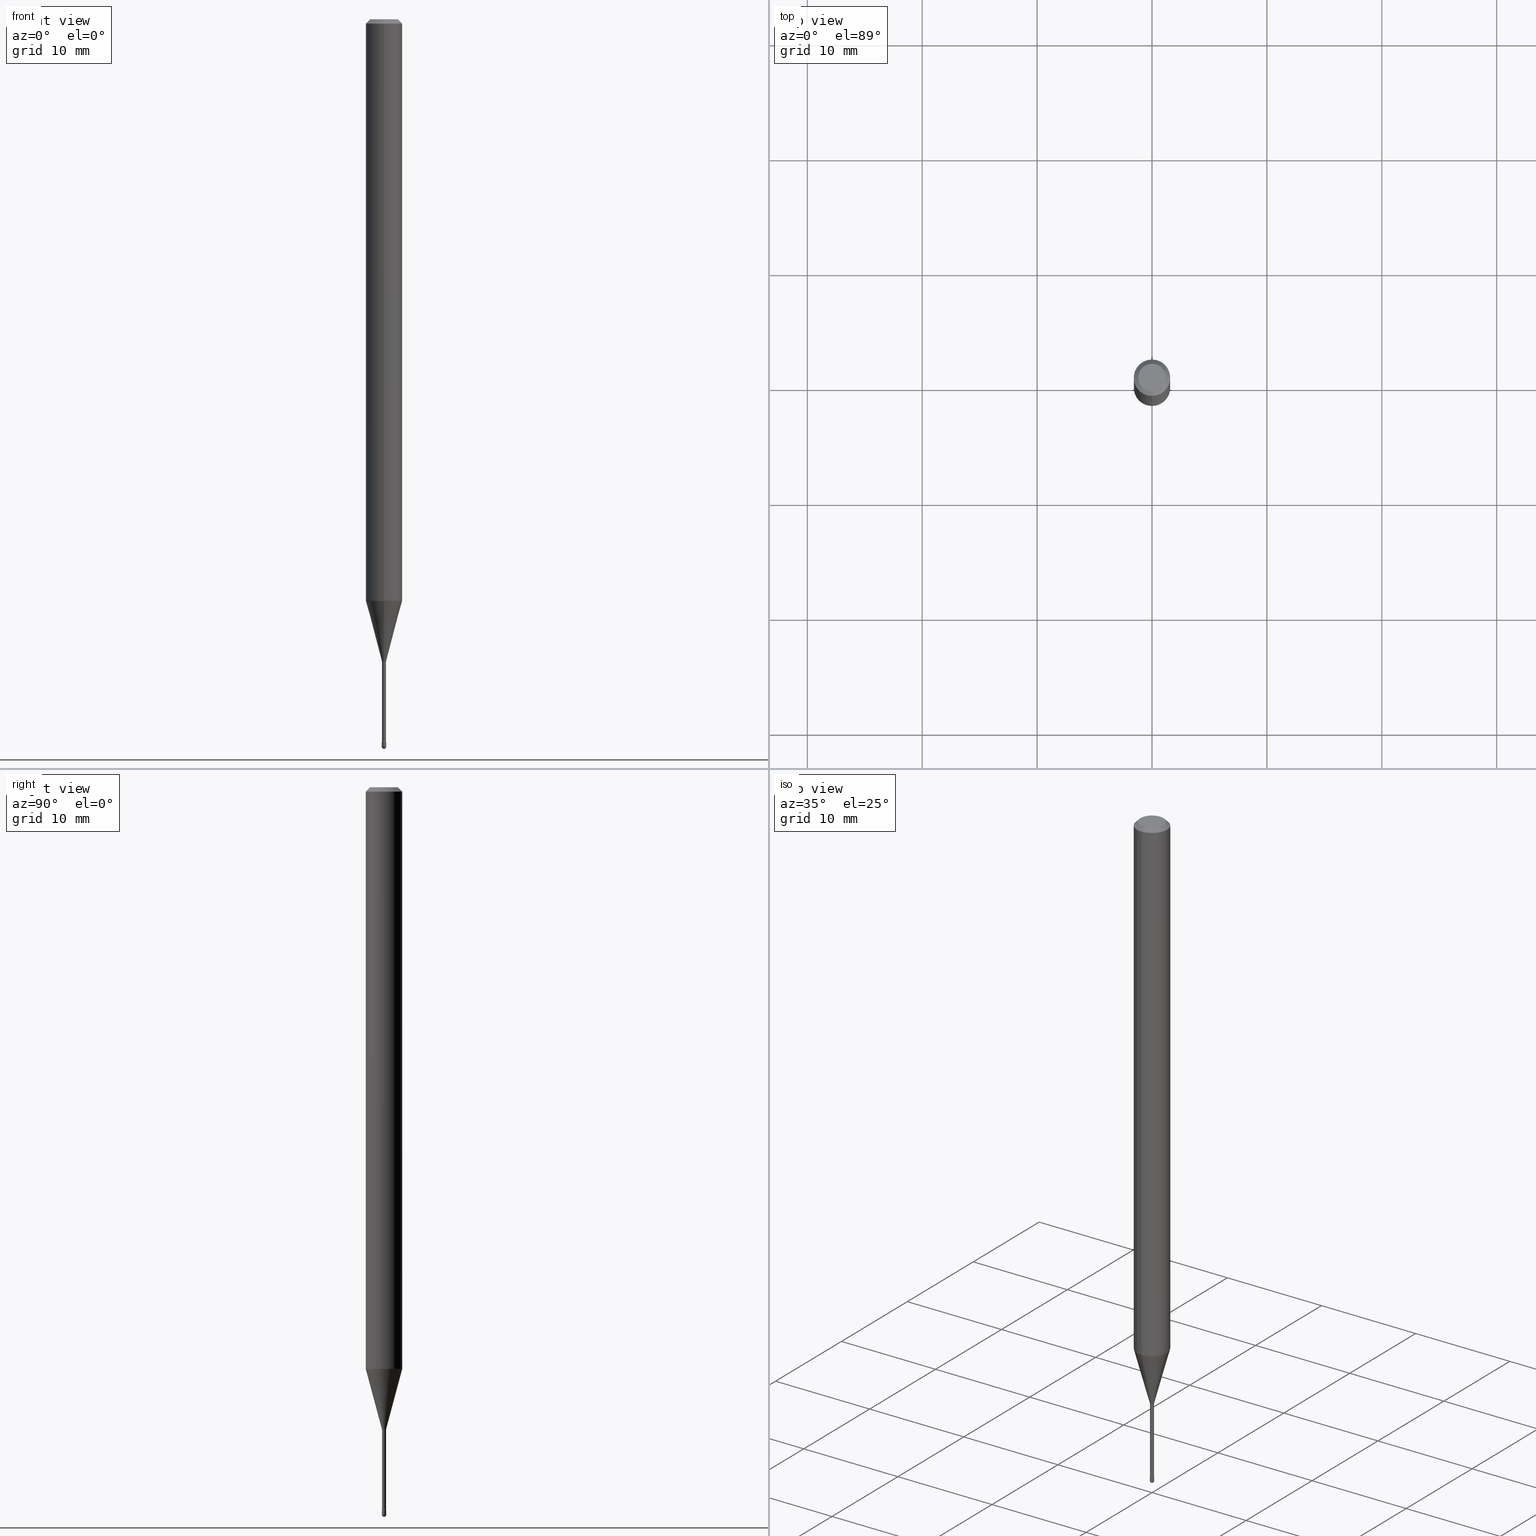
[diagram: canonical four-view strip — front | top / right | iso, engineering-drawing reading convention]
A machine part, canonical four-view strip (front | top / right | iso — engineering-drawing reading convention). The complete STEP part file that produces these views, byte-faithful:
ISO-10303-21;
HEADER;
FILE_DESCRIPTION (( 'STEP AP203' ),
    '1' );
FILE_NAME ('03941.STEP',
    '2024-04-09T21:19:28',
    ( '' ),
    ( '' ),
    'SwSTEP 2.0',
    'SolidWorks 2023',
    '' );
FILE_SCHEMA (( 'CONFIG_CONTROL_DESIGN' ));
ENDSEC;

DATA;
#1 = LINE ( 'NONE', #135, #249 ) ;
#2 = VERTEX_POINT ( 'NONE', #196 ) ;
#3 = EDGE_CURVE ( 'NONE', #2, #80, #364, .T. ) ;
#4 = DIRECTION ( 'NONE',  ( -2.438088387897960049E-29, 3.491481338843145188E-15, 1.000000000000000000 ) ) ;
#5 = ORIENTED_EDGE ( 'NONE', *, *, #25, .T. ) ;
#6 = DIRECTION ( 'NONE',  ( -2.445468806185136597E-29, 3.491481338843145583E-15, 1.000000000000000000 ) ) ;
#7 = ORIENTED_EDGE ( 'NONE', *, *, #260, .T. ) ;
#8 = AXIS2_PLACEMENT_3D ( 'NONE', #153, #381, #505 ) ;
#9 = CIRCLE ( 'NONE', #72, 0.04749999999999999362 ) ;
#10 = AXIS2_PLACEMENT_3D ( 'NONE', #456, #19, #449 ) ;
#11 = APPLICATION_PROTOCOL_DEFINITION ( 'international standard', 'config_control_design', 1994, #553 ) ;
#12 = DIRECTION ( 'NONE',  ( -2.445459796286561795E-29, 3.491494241530716239E-15, 1.000000000000000000 ) ) ;
#13 = ORIENTED_EDGE ( 'NONE', *, *, #310, .T. ) ;
#14 = CALENDAR_DATE ( 2024, 9, 4 ) ;
#15 = DIRECTION ( 'NONE',  ( -2.445459796286561515E-29, 3.491494241530715845E-15, 1.000000000000000000 ) ) ;
#16 = VERTEX_POINT ( 'NONE', #143 ) ;
#17 = ADVANCED_FACE ( 'NONE', ( #245 ), #288, .T. ) ;
#18 = COORDINATED_UNIVERSAL_TIME_OFFSET ( 5, 0, .BEHIND. ) ;
#19 = DIRECTION ( 'NONE',  ( -2.445468806185136597E-29, 3.491481338843145583E-15, 1.000000000000000000 ) ) ;
#20 = CARTESIAN_POINT ( 'NONE',  ( -0.007499999999999998855, 5.329070518200750581E-17, -3.689201317691178390E-31 ) ) ;
#21 = PRODUCT_RELATED_PRODUCT_CATEGORY ( 'detail', '', ( #411 ) ) ;
#22 = VECTOR ( 'NONE', #15, 39.37007874015748143 ) ;
#23 = CARTESIAN_POINT ( 'NONE',  ( 5.384860654748895550E-29, -7.688153879032997927E-15, -2.201974787463810923 ) ) ;
#24 = DIRECTION ( 'NONE',  ( 1.000000000000000000, -6.982962677686265922E-15, 4.883557194083112340E-29 ) ) ;
#25 = EDGE_CURVE ( 'NONE', #173, #523, #225, .T. ) ;
#26 = FACE_OUTER_BOUND ( 'NONE', #489, .T. ) ;
#27 = ADVANCED_FACE ( 'NONE', ( #26 ), #332, .F. ) ;
#28 = CARTESIAN_POINT ( 'NONE',  ( 6.095330999416453954E-29, -8.702517237066541600E-15, -2.492500000000000160 ) ) ;
#29 = AXIS2_PLACEMENT_3D ( 'NONE', #503, #546, #110 ) ;
#30 = APPROVAL_PERSON_ORGANIZATION ( #445, #327, #414 ) ;
#31 = DIRECTION ( 'NONE',  ( -2.445468806185136877E-29, 3.491481338843145188E-15, 1.000000000000000000 ) ) ;
#32 = EDGE_CURVE ( 'NONE', #187, #106, #409, .T. ) ;
#33 = DIRECTION ( 'NONE',  ( -6.982962677686265922E-15, -1.000000000000000000, 3.491494241530716239E-15 ) ) ;
#34 = CC_DESIGN_DATE_AND_TIME_ASSIGNMENT ( #109, #149, ( #134 ) ) ;
#35 = VERTEX_POINT ( 'NONE', #419 ) ;
#36 = DIRECTION ( 'NONE',  ( -2.445459796286561795E-29, 3.491494241530716239E-15, 1.000000000000000000 ) ) ;
#37 = VERTEX_POINT ( 'NONE', #198 ) ;
#38 = FACE_OUTER_BOUND ( 'NONE', #439, .T. ) ;
#39 = ORIENTED_EDGE ( 'NONE', *, *, #526, .F. ) ;
#40 = ADVANCED_FACE ( 'NONE', ( #369 ), #376, .T. ) ;
#41 = FACE_OUTER_BOUND ( 'NONE', #394, .T. ) ;
#42 = ORIENTED_EDGE ( 'NONE', *, *, #469, .T. ) ;
#43 = CARTESIAN_POINT ( 'NONE',  ( 6.048508650603792991E-29, -8.635667332170297409E-15, -2.473353426265656907 ) ) ;
#44 = CARTESIAN_POINT ( 'NONE',  ( 5.329070518206814949E-17, 0.007499999999991363402, -2.476999999999999869 ) ) ;
#45 = CIRCLE ( 'NONE', #501, 0.007561112605663979948 ) ;
#46 = EDGE_LOOP ( 'NONE', ( #228, #485, #85, #129 ) ) ;
#47 = CARTESIAN_POINT ( 'NONE',  ( 6.057403915401813978E-29, -8.648431236271582812E-15, -2.476999999999999869 ) ) ;
#48 = ORIENTED_EDGE ( 'NONE', *, *, #112, .F. ) ;
#49 = SPHERICAL_SURFACE ( 'NONE', #159, 0.007499999999999925129 ) ;
#50 = ORIENTED_EDGE ( 'NONE', *, *, #322, .F. ) ;
#51 = CARTESIAN_POINT ( 'NONE',  ( 6.057403915401813978E-29, -8.648431236271582812E-15, -2.476999999999999869 ) ) ;
#52 = ORIENTED_EDGE ( 'NONE', *, *, #137, .T. ) ;
#53 = CIRCLE ( 'NONE', #95, 0.01500000000000002373 ) ;
#54 = CC_DESIGN_APPROVAL ( #388, ( #424 ) ) ;
#55 = DIRECTION ( 'NONE',  ( 1.839019923739597160E-15, 0.2588190451025245142, 0.9659258262890670910 ) ) ;
#56 = EDGE_LOOP ( 'NONE', ( #74, #140, #77, #398 ) ) ;
#57 = PERSON_AND_ORGANIZATION_ROLE ( 'creator' ) ;
#58 = CARTESIAN_POINT ( 'NONE',  ( -1.539743270429283217E-16, -0.02205000000000768845, -2.201974787463810923 ) ) ;
#59 = ADVANCED_FACE ( 'NONE', ( #247 ), #548, .T. ) ;
#60 = DIRECTION ( 'NONE',  ( -2.445468806185136597E-29, 3.491481338843145583E-15, 1.000000000000000000 ) ) ;
#61 = CARTESIAN_POINT ( 'NONE',  ( 6.095330999416453954E-29, -8.702517237066541600E-15, -2.492500000000000160 ) ) ;
#62 = DIRECTION ( 'NONE',  ( -2.445468806185136597E-29, 3.491481338843145583E-15, 1.000000000000000000 ) ) ;
#63 = ADVANCED_FACE ( 'NONE', ( #543 ), #240, .T. ) ;
#64 = AXIS2_PLACEMENT_3D ( 'NONE', #207, #255, #343 ) ;
#65 = LOCAL_TIME ( 17, 19, 28.00000000000000000, #448 ) ;
#66 = PERSON_AND_ORGANIZATION ( #358, #560 ) ;
#67 = CARTESIAN_POINT ( 'NONE',  ( 3.668189694429862924E-31, -5.237241362296103029E-17, -0.01500000000000008271 ) ) ;
#68 = ORIENTED_EDGE ( 'NONE', *, *, #291, .T. ) ;
#69 = DIRECTION ( 'NONE',  ( 7.105427357601001859E-15, 1.000000000000000000, 0.000000000000000000 ) ) ;
#70 = EDGE_CURVE ( 'NONE', #211, #285, #167, .T. ) ;
#71 = CARTESIAN_POINT ( 'NONE',  ( 5.384840815179397480E-29, -7.688182290425718851E-15, -2.201974787463810923 ) ) ;
#72 = AXIS2_PLACEMENT_3D ( 'NONE', #172, #223, #217 ) ;
#73 = DIRECTION ( 'NONE',  ( -2.445459796286561795E-29, 3.491494241530716239E-15, 1.000000000000000000 ) ) ;
#74 = ORIENTED_EDGE ( 'NONE', *, *, #70, .F. ) ;
#75 = ORIENTED_EDGE ( 'NONE', *, *, #483, .F. ) ;
#76 = DIRECTION ( 'NONE',  ( -2.445468806185136597E-29, 3.491481338843145583E-15, 1.000000000000000000 ) ) ;
#77 = ORIENTED_EDGE ( 'NONE', *, *, #199, .F. ) ;
#78 = CONICAL_SURFACE ( 'NONE', #313, 0.06250000000000000000, 0.7853981633974483900 ) ;
#79 = DIRECTION ( 'NONE',  ( 7.105427357601001859E-15, 1.000000000000000000, 0.000000000000000000 ) ) ;
#80 = VERTEX_POINT ( 'NONE', #334 ) ;
#81 = CARTESIAN_POINT ( 'NONE',  ( 6.095330999416453954E-29, -8.702517237066541600E-15, -2.492500000000000160 ) ) ;
#82 = ORIENTED_EDGE ( 'NONE', *, *, #291, .F. ) ;
#83 = DIMENSIONAL_EXPONENTS ( 1.000000000000000000, 0.000000000000000000, 0.000000000000000000, 0.000000000000000000, 0.000000000000000000, 0.000000000000000000, 0.000000000000000000 ) ;
#84 = DIRECTION ( 'NONE',  ( -2.445459796286561515E-29, 3.491494241530715845E-15, 1.000000000000000000 ) ) ;
#85 = ORIENTED_EDGE ( 'NONE', *, *, #3, .F. ) ;
#86 = CARTESIAN_POINT ( 'NONE',  ( -4.364351673553429572E-16, -0.06250000000000695277, -1.993057782720305759 ) ) ;
#87 = AXIS2_PLACEMENT_3D ( 'NONE', #434, #268, #522 ) ;
#88 = ORIENTED_EDGE ( 'NONE', *, *, #535, .F. ) ;
#89 = LINE ( 'NONE', #277, #413 ) ;
#90 = ORIENTED_EDGE ( 'NONE', *, *, #70, .T. ) ;
#91 = CARTESIAN_POINT ( 'NONE',  ( -5.279896712708096815E-17, -0.007561112605671654364, -2.198092501787273001 ) ) ;
#92 = ORIENTED_EDGE ( 'NONE', *, *, #137, .F. ) ;
#93 = CARTESIAN_POINT ( 'NONE',  ( -3.773273898774340269E-16, -0.04749999999999999362, 8.309955727882320030E-17 ) ) ;
#94 = EDGE_LOOP ( 'NONE', ( #383, #520, #183, #123 ) ) ;
#95 = AXIS2_PLACEMENT_3D ( 'NONE', #459, #294, #69 ) ;
#96 = EDGE_CURVE ( 'NONE', #106, #450, #144, .T. ) ;
#97 = PERSON_AND_ORGANIZATION ( #358, #560 ) ;
#98 = DIRECTION ( 'NONE',  ( -1.000000000000000000, 7.105427357601001070E-15, -4.926315508542082329E-29 ) ) ;
#99 = ORIENTED_EDGE ( 'NONE', *, *, #429, .T. ) ;
#100 = PRODUCT_DEFINITION_SHAPE ( 'NONE', 'NONE',  #424 ) ;
#101 = DIRECTION ( 'NONE',  ( -6.982962677686265922E-15, -1.000000000000000000, 4.370956789862821150E-15 ) ) ;
#102 = EDGE_CURVE ( 'NONE', #428, #344, #53, .T. ) ;
#103 = CARTESIAN_POINT ( 'NONE',  ( 0.000000000000000000, 0.000000000000000000, 0.000000000000000000 ) ) ;
#104 = APPROVAL_STATUS ( 'not_yet_approved' ) ;
#105 = DIRECTION ( 'NONE',  ( -6.982962677686265922E-15, -1.000000000000000000, 0.000000000000000000 ) ) ;
#106 = VERTEX_POINT ( 'NONE', #111 ) ;
#107 = AXIS2_PLACEMENT_3D ( 'NONE', #474, #559, #252 ) ;
#108 = VECTOR ( 'NONE', #330, 39.37007874015748143 ) ;
#109 = DATE_AND_TIME ( #371, #457 ) ;
#110 = DIRECTION ( 'NONE',  ( 1.000000000000000000, -6.982962677686268288E-15, 0.000000000000000000 ) ) ;
#111 = CARTESIAN_POINT ( 'NONE',  ( -0.007500000000000001457, -8.622167551508499156E-15, -2.476999999999999869 ) ) ;
#112 = EDGE_CURVE ( 'NONE', #80, #2, #336, .T. ) ;
#113 = CARTESIAN_POINT ( 'NONE',  ( -5.329070518194628897E-17, -0.007500000000008663799, -2.492500000000000160 ) ) ;
#114 = TOROIDAL_SURFACE ( 'NONE', #342, 0.02205000000000003485, 0.01500000000000002547 ) ;
#115 = CIRCLE ( 'NONE', #10, 0.007499999999999999722 ) ;
#116 = DIRECTION ( 'NONE',  ( 6.982962677686265922E-15, 1.000000000000000000, -3.483106191921935554E-15 ) ) ;
#117 = FACE_OUTER_BOUND ( 'NONE', #126, .T. ) ;
#118 = EDGE_CURVE ( 'NONE', #328, #37, #462, .T. ) ;
#119 = CARTESIAN_POINT ( 'NONE',  ( 1.566746732351558825E-16, 0.02204999999999231186, -2.201974787463810923 ) ) ;
#120 = VECTOR ( 'NONE', #393, 39.37007874015748143 ) ;
#121 = CC_DESIGN_APPROVAL ( #327, ( #464 ) ) ;
#122 = DIRECTION ( 'NONE',  ( 6.982962677686265922E-15, 1.000000000000000000, 0.000000000000000000 ) ) ;
#123 = ORIENTED_EDGE ( 'NONE', *, *, #555, .F. ) ;
#124 = EDGE_CURVE ( 'NONE', #328, #360, #430, .T. ) ;
#125 = DIRECTION ( 'NONE',  ( -1.000000000000000000, 6.982962677686265922E-15, -4.883557194083112901E-29 ) ) ;
#126 = EDGE_LOOP ( 'NONE', ( #259, #321, #350, #256 ) ) ;
#127 = CC_DESIGN_PERSON_AND_ORGANIZATION_ASSIGNMENT ( #455, #185, ( #464 ) ) ;
#128 = CARTESIAN_POINT ( 'NONE',  ( 6.048508650603792991E-29, -8.635667332170297409E-15, -2.473353426265656907 ) ) ;
#129 = ORIENTED_EDGE ( 'NONE', *, *, #374, .F. ) ;
#130 = CLOSED_SHELL ( 'NONE', ( #17, #386, #331, #154, #59 ) ) ;
#131 = CARTESIAN_POINT ( 'NONE',  ( 5.009326287108708664E-17, 0.007050000000000005047, 4.534583644884544439E-16 ) ) ;
#132 = CIRCLE ( 'NONE', #377, 0.007499999999999999722 ) ;
#133 = ORIENTED_EDGE ( 'NONE', *, *, #506, .F. ) ;
#134 = SECURITY_CLASSIFICATION ( '', '', #502 ) ;
#135 = CARTESIAN_POINT ( 'NONE',  ( -4.287811248607203282E-16, -0.06250000000000005551, -0.01499999999999986587 ) ) ;
#136 = EDGE_LOOP ( 'NONE', ( #476, #162, #5, #208, #221 ) ) ;
#137 = EDGE_CURVE ( 'NONE', #428, #16, #365, .T. ) ;
#138 = APPROVAL_DATE_TIME ( #333, #327 ) ;
#139 = CARTESIAN_POINT ( 'NONE',  ( 5.372493636224038015E-17, 0.007561112605656304664, -2.198092501787273001 ) ) ;
#140 = ORIENTED_EDGE ( 'NONE', *, *, #521, .T. ) ;
#141 = CC_DESIGN_PERSON_AND_ORGANIZATION_ASSIGNMENT ( #66, #361, ( #134 ) ) ;
#142 = DIRECTION ( 'NONE',  ( -1.000000000000000000, 6.982962677686265922E-15, -4.883557194083112340E-29 ) ) ;
#143 = CARTESIAN_POINT ( 'NONE',  ( -4.922988687762774144E-17, -0.007050000000008643103, -2.473353426265656907 ) ) ;
#144 = CIRCLE ( 'NONE', #29, 0.007499999999999999722 ) ;
#145 = EDGE_CURVE ( 'NONE', #523, #450, #155, .T. ) ;
#146 = COORDINATED_UNIVERSAL_TIME_OFFSET ( 5, 0, .BEHIND. ) ;
#147 = DIRECTION ( 'NONE',  ( -6.982962677686265133E-15, -1.000000000000000000, 0.000000000000000000 ) ) ;
#148 = DIRECTION ( 'NONE',  ( -2.445468806185136597E-29, 3.491481338843145583E-15, 1.000000000000000000 ) ) ;
#149 = DATE_TIME_ROLE ( 'classification_date' ) ;
#150 = CARTESIAN_POINT ( 'NONE',  ( 4.364351673553919652E-16, 0.06249999999999995143, -0.01500000000000030129 ) ) ;
#151 = ORIENTED_EDGE ( 'NONE', *, *, #307, .F. ) ;
#152 = DIRECTION ( 'NONE',  ( -2.445459796286561795E-29, 3.491494241530716239E-15, 1.000000000000000000 ) ) ;
#153 = CARTESIAN_POINT ( 'NONE',  ( -1.169113584055446105E-44, 1.669184350826100908E-30, 4.780733988912460139E-16 ) ) ;
#154 = ADVANCED_FACE ( 'NONE', ( #261 ), #507, .T. ) ;
#155 = LINE ( 'NONE', #258, #304 ) ;
#156 = ADVANCED_FACE ( 'NONE', ( #41 ), #78, .T. ) ;
#157 = CARTESIAN_POINT ( 'NONE',  ( 6.095330999416453954E-29, -8.702517237066541600E-15, -2.492500000000000160 ) ) ;
#158 = AXIS2_PLACEMENT_3D ( 'NONE', #493, #236, #551 ) ;
#159 = AXIS2_PLACEMENT_3D ( 'NONE', #182, #125, #397 ) ;
#160 = CIRCLE ( 'NONE', #216, 0.06250000000000000000 ) ;
#161 = CARTESIAN_POINT ( 'NONE',  ( -0.007499999999999998855, -8.622167551508499156E-15, -2.492500000000000160 ) ) ;
#162 = ORIENTED_EDGE ( 'NONE', *, *, #199, .T. ) ;
#163 = SHAPE_DEFINITION_REPRESENTATION ( #100, #219 ) ;
#164 = FACE_OUTER_BOUND ( 'NONE', #46, .T. ) ;
#165 = DIRECTION ( 'NONE',  ( -1.000000000000000000, 6.982962677686265922E-15, -4.883557194083112901E-29 ) ) ;
#166 = ORIENTED_EDGE ( 'NONE', *, *, #335, .F. ) ;
#167 = CIRCLE ( 'NONE', #209, 0.007499999999999925129 ) ;
#168 = AXIS2_PLACEMENT_3D ( 'NONE', #204, #326, #466 ) ;
#169 = TOROIDAL_SURFACE ( 'NONE', #530, 0.02205000000000000016, 0.01500000000000002547 ) ;
#170 = DIRECTION ( 'NONE',  ( 1.000000000000000000, -6.982962677686265922E-15, 4.876176775795935793E-29 ) ) ;
#171 = EDGE_CURVE ( 'NONE', #523, #285, #354, .T. ) ;
#172 = CARTESIAN_POINT ( 'NONE',  ( 2.023487340324871888E-45, -2.889148145544406891E-31, -8.274641919388579936E-17 ) ) ;
#173 = VERTEX_POINT ( 'NONE', #113 ) ;
#174 = DIRECTION ( 'NONE',  ( -6.982962677686265922E-15, -1.000000000000000000, 0.000000000000000000 ) ) ;
#175 = EDGE_LOOP ( 'NONE', ( #7, #13, #478, #306 ) ) ;
#176 = UNCERTAINTY_MEASURE_WITH_UNIT (LENGTH_MEASURE( 1.000000000000000082E-05 ), #197, 'distance_accuracy_value', 'NONE');
#177 = ADVANCED_FACE ( 'NONE', ( #117 ), #299, .T. ) ;
#178 = FACE_OUTER_BOUND ( 'NONE', #175, .T. ) ;
#179 = AXIS2_PLACEMENT_3D ( 'NONE', #205, #382, #556 ) ;
#180 = ORIENTED_EDGE ( 'NONE', *, *, #171, .F. ) ;
#181 = DATE_AND_TIME ( #541, #203 ) ;
#182 = CARTESIAN_POINT ( 'NONE',  ( 6.095330999416453954E-29, -8.702517237066541600E-15, -2.492500000000000160 ) ) ;
#183 = ORIENTED_EDGE ( 'NONE', *, *, #124, .T. ) ;
#184 = DESIGN_CONTEXT ( 'detailed design', #508, 'design' ) ;
#185 = PERSON_AND_ORGANIZATION_ROLE ( 'design_supplier' ) ;
#186 = LINE ( 'NONE', #496, #22 ) ;
#187 = VERTEX_POINT ( 'NONE', #161 ) ;
#188 = ADVANCED_FACE ( 'NONE', ( #297 ), #338, .F. ) ;
#189 = PERSON_AND_ORGANIZATION ( #358, #560 ) ;
#190 = DIRECTION ( 'NONE',  ( -6.982962677686266711E-15, -1.000000000000000000, 0.000000000000000000 ) ) ;
#191 = CARTESIAN_POINT ( 'NONE',  ( 0.000000000000000000, 0.000000000000000000, 0.000000000000000000 ) ) ;
#192 = TOROIDAL_SURFACE ( 'NONE', #303, 0.02205000000000000016, 0.01500000000000002547 ) ;
#193 = CIRCLE ( 'NONE', #267, 0.007499999999999925129 ) ;
#194 = LENGTH_MEASURE_WITH_UNIT ( LENGTH_MEASURE( 0.02539999999999999897 ), #293 );
#195 = DIRECTION ( 'NONE',  ( -6.982962677686266711E-15, -1.000000000000000000, 0.000000000000000000 ) ) ;
#196 = CARTESIAN_POINT ( 'NONE',  ( -4.922988687763432966E-17, -0.007050000000007689872, -2.201974787463810923 ) ) ;
#197 =( CONVERSION_BASED_UNIT ( 'INCH', #194 ) LENGTH_UNIT ( ) NAMED_UNIT ( #83 ) );
#198 = CARTESIAN_POINT ( 'NONE',  ( 4.440892098501111311E-16, 0.06249999999999304029, -1.993057782720306426 ) ) ;
#199 = EDGE_CURVE ( 'NONE', #187, #173, #298, .T. ) ;
#200 = ORIENTED_EDGE ( 'NONE', *, *, #102, .T. ) ;
#201 = CLOSED_SHELL ( 'NONE', ( #280, #232, #401, #156, #177, #410, #467, #63, #351, #27, #188, #222, #40, #509 ) ) ;
#202 = AXIS2_PLACEMENT_3D ( 'NONE', #352, #6, #317 ) ;
#203 = LOCAL_TIME ( 17, 19, 28.00000000000000000, #146 ) ;
#204 = CARTESIAN_POINT ( 'NONE',  ( 4.873942679318546206E-29, -6.958749771405926605E-15, -1.993057782720306204 ) ) ;
#205 = CARTESIAN_POINT ( 'NONE',  ( 2.023487340324871888E-45, -2.889148145544406891E-31, -8.274641919388579936E-17 ) ) ;
#206 = ORIENTED_EDGE ( 'NONE', *, *, #112, .T. ) ;
#207 = CARTESIAN_POINT ( 'NONE',  ( 5.237222008270756882E-17, 0.007499999999991352126, -2.476999999999999869 ) ) ;
#208 = ORIENTED_EDGE ( 'NONE', *, *, #145, .T. ) ;
#209 = AXIS2_PLACEMENT_3D ( 'NONE', #28, #24, #373 ) ;
#210 = CC_DESIGN_APPROVAL ( #494, ( #134 ) ) ;
#211 = VERTEX_POINT ( 'NONE', #432 ) ;
#212 = DIRECTION ( 'NONE',  ( -6.982962677686265922E-15, -1.000000000000000000, 3.491494241530716239E-15 ) ) ;
#213 = ORIENTED_EDGE ( 'NONE', *, *, #335, .T. ) ;
#214 = CARTESIAN_POINT ( 'NONE',  ( 5.375346841639724006E-29, -7.674627312342109412E-15, -2.198092501787273001 ) ) ;
#215 = VECTOR ( 'NONE', #55, 39.37007874015748854 ) ;
#216 = AXIS2_PLACEMENT_3D ( 'NONE', #542, #244, #101 ) ;
#217 = DIRECTION ( 'NONE',  ( -6.982962677686266711E-15, -1.000000000000000000, 3.491494241530716239E-15 ) ) ;
#218 = ORIENTED_EDGE ( 'NONE', *, *, #3, .T. ) ;
#219 = ADVANCED_BREP_SHAPE_REPRESENTATION ( '03941', ( #254, #270, #380 ), #242 ) ;
#220 = DIRECTION ( 'NONE',  ( -2.445459796286561795E-29, 3.491494241530716239E-15, 1.000000000000000000 ) ) ;
#221 = ORIENTED_EDGE ( 'NONE', *, *, #96, .F. ) ;
#222 = ADVANCED_FACE ( 'NONE', ( #38 ), #114, .F. ) ;
#223 = DIRECTION ( 'NONE',  ( -2.445459796286561795E-29, 3.491494241530716239E-15, 1.000000000000000000 ) ) ;
#224 = ORIENTED_EDGE ( 'NONE', *, *, #295, .T. ) ;
#225 = CIRCLE ( 'NONE', #275, 0.007499999999999998855 ) ;
#226 = DIRECTION ( 'NONE',  ( -6.982962677686265133E-15, -1.000000000000000000, 0.000000000000000000 ) ) ;
#227 = CONICAL_SURFACE ( 'NONE', #241, 0.007561112605663979948, 0.2617993877991498519 ) ;
#228 = ORIENTED_EDGE ( 'NONE', *, *, #307, .T. ) ;
#229 = AXIS2_PLACEMENT_3D ( 'NONE', #499, #362, #492 ) ;
#230 = APPLICATION_PROTOCOL_DEFINITION ( 'international standard', 'config_control_design', 1994, #508 ) ;
#231 = FACE_OUTER_BOUND ( 'NONE', #566, .T. ) ;
#232 = ADVANCED_FACE ( 'NONE', ( #164 ), #426, .T. ) ;
#233 = ORIENTED_EDGE ( 'NONE', *, *, #145, .F. ) ;
#234 = DATE_AND_TIME ( #451, #65 ) ;
#235 = CARTESIAN_POINT ( 'NONE',  ( 3.840629472727447874E-16, 0.04749999999999999362, -2.485923956665947867E-16 ) ) ;
#236 = DIRECTION ( 'NONE',  ( 2.445459796286561795E-29, -3.491494241530715845E-15, -1.000000000000000000 ) ) ;
#237 = CC_DESIGN_PERSON_AND_ORGANIZATION_ASSIGNMENT ( #286, #57, ( #464 ) ) ;
#238 = CARTESIAN_POINT ( 'NONE',  ( 0.000000000000000000, 0.000000000000000000, 0.000000000000000000 ) ) ;
#239 = DIRECTION ( 'NONE',  ( -6.982962677686265922E-15, -1.000000000000000000, 3.483106191921935554E-15 ) ) ;
#240 = CYLINDRICAL_SURFACE ( 'NONE', #289, 0.06250000000000000000 ) ;
#241 = AXIS2_PLACEMENT_3D ( 'NONE', #533, #438, #226 ) ;
#242 =( GEOMETRIC_REPRESENTATION_CONTEXT ( 3 ) GLOBAL_UNCERTAINTY_ASSIGNED_CONTEXT ( ( #176 ) ) GLOBAL_UNIT_ASSIGNED_CONTEXT ( ( #197, #281, #495 ) ) REPRESENTATION_CONTEXT ( 'NONE', 'WORKASPACE' ) );
#243 = APPROVAL_ROLE ( '' ) ;
#244 = DIRECTION ( 'NONE',  ( -2.445459796286561795E-29, 3.491494241530716239E-15, 1.000000000000000000 ) ) ;
#245 = FACE_OUTER_BOUND ( 'NONE', #403, .T. ) ;
#246 = DATE_AND_TIME ( #292, #379 ) ;
#247 = FACE_OUTER_BOUND ( 'NONE', #136, .T. ) ;
#248 = DIRECTION ( 'NONE',  ( -2.445459796286561795E-29, 3.491494241530716239E-15, 1.000000000000000000 ) ) ;
#249 = VECTOR ( 'NONE', #271, 39.37007874015748143 ) ;
#250 = APPROVAL_PERSON_ORGANIZATION ( #329, #494, #243 ) ;
#251 = CARTESIAN_POINT ( 'NONE',  ( -1.169113584055446105E-44, 1.669184350826100908E-30, 4.780733988912460139E-16 ) ) ;
#252 = DIRECTION ( 'NONE',  ( -6.982962677686265922E-15, -1.000000000000000000, 3.491494241530715450E-15 ) ) ;
#253 = ORIENTED_EDGE ( 'NONE', *, *, #431, .T. ) ;
#254 = MANIFOLD_SOLID_BREP ( 'Body-Move/Copy2[1]', #130 ) ;
#255 = DIRECTION ( 'NONE',  ( -2.445459796286561795E-29, 3.491494241530715845E-15, 1.000000000000000000 ) ) ;
#256 = ORIENTED_EDGE ( 'NONE', *, *, #124, .F. ) ;
#257 = AXIS2_PLACEMENT_3D ( 'NONE', #477, #356, #395 ) ;
#258 = CARTESIAN_POINT ( 'NONE',  ( 0.007499999999999998855, -5.237222008264699293E-17, 3.657132581846951319E-31 ) ) ;
#259 = ORIENTED_EDGE ( 'NONE', *, *, #118, .T. ) ;
#260 = EDGE_CURVE ( 'NONE', #441, #35, #45, .T. ) ;
#261 = FACE_OUTER_BOUND ( 'NONE', #442, .T. ) ;
#262 = EDGE_LOOP ( 'NONE', ( #341, #346 ) ) ;
#263 = EDGE_CURVE ( 'NONE', #35, #80, #558, .T. ) ;
#264 = PLANE ( 'NONE',  #266 ) ;
#265 = ORIENTED_EDGE ( 'NONE', *, *, #102, .F. ) ;
#266 = AXIS2_PLACEMENT_3D ( 'NONE', #564, #4, #170 ) ;
#267 = AXIS2_PLACEMENT_3D ( 'NONE', #61, #98, #545 ) ;
#268 = DIRECTION ( 'NONE',  ( 2.445459796286561795E-29, -3.491494241530716239E-15, -1.000000000000000000 ) ) ;
#269 = EDGE_LOOP ( 'NONE', ( #50, #52, #396, #48 ) ) ;
#270 = MANIFOLD_SOLID_BREP ( 'Body-Move/Copy2[2]', #201 ) ;
#271 = DIRECTION ( 'NONE',  ( -4.851104656540964275E-15, -0.7071067811865500152, -0.7071067811865450192 ) ) ;
#272 = ORIENTED_EDGE ( 'NONE', *, *, #469, .F. ) ;
#273 = CARTESIAN_POINT ( 'NONE',  ( 0.007499999999999999722, -8.700771496397117730E-15, -2.476999999999999869 ) ) ;
#274 = ORIENTED_EDGE ( 'NONE', *, *, #370, .F. ) ;
#275 = AXIS2_PLACEMENT_3D ( 'NONE', #418, #60, #378 ) ;
#276 = AXIS2_PLACEMENT_3D ( 'NONE', #51, #12, #105 ) ;
#277 = CARTESIAN_POINT ( 'NONE',  ( -4.922988687768820639E-17, -0.007050000000000005047, 5.026884332940376826E-16 ) ) ;
#278 = CIRCLE ( 'NONE', #437, 0.01500000000000002373 ) ;
#279 = ORIENTED_EDGE ( 'NONE', *, *, #96, .T. ) ;
#280 = ADVANCED_FACE ( 'NONE', ( #389 ), #192, .F. ) ;
#281 =( NAMED_UNIT ( * ) PLANE_ANGLE_UNIT ( ) SI_UNIT ( $, .RADIAN. ) );
#282 = CARTESIAN_POINT ( 'NONE',  ( -1.539743270429219122E-16, -0.02205000000000867030, -2.473353426265656907 ) ) ;
#283 = CARTESIAN_POINT ( 'NONE',  ( 5.384840815179397480E-29, -7.688182290425718851E-15, -2.201974787463810923 ) ) ;
#284 = DIRECTION ( 'NONE',  ( -2.445459796286561795E-29, 3.491494241530716239E-15, 1.000000000000000000 ) ) ;
#285 = VERTEX_POINT ( 'NONE', #463 ) ;
#286 = PERSON_AND_ORGANIZATION ( #358, #560 ) ;
#287 = DIRECTION ( 'NONE',  ( -2.445459796286561795E-29, 3.491494241530716239E-15, 1.000000000000000000 ) ) ;
#288 = CYLINDRICAL_SURFACE ( 'NONE', #412, 0.007499999999999998855 ) ;
#289 = AXIS2_PLACEMENT_3D ( 'NONE', #296, #152, #416 ) ;
#290 = CC_DESIGN_SECURITY_CLASSIFICATION ( #134, ( #464 ) ) ;
#291 = EDGE_CURVE ( 'NONE', #447, #557, #399, .T. ) ;
#292 = CALENDAR_DATE ( 2024, 9, 4 ) ;
#293 =( LENGTH_UNIT ( ) NAMED_UNIT ( * ) SI_UNIT ( $, .METRE. ) );
#294 = DIRECTION ( 'NONE',  ( 1.000000000000000000, -7.105427357601001070E-15, 4.926315666554432640E-29 ) ) ;
#295 = EDGE_CURVE ( 'NONE', #447, #360, #1, .T. ) ;
#296 = CARTESIAN_POINT ( 'NONE',  ( -1.169113584055446105E-44, 1.669184350826100908E-30, 4.780733988912460139E-16 ) ) ;
#297 = FACE_OUTER_BOUND ( 'NONE', #262, .T. ) ;
#298 = CIRCLE ( 'NONE', #550, 0.007499999999999998855 ) ;
#299 = CYLINDRICAL_SURFACE ( 'NONE', #107, 0.06250000000000000000 ) ;
#300 = CARTESIAN_POINT ( 'NONE',  ( 3.668189694429862924E-31, -5.237241362296103029E-17, -0.01500000000000008271 ) ) ;
#301 = DIRECTION ( 'NONE',  ( -2.445459796286561515E-29, 3.491494241530715845E-15, 1.000000000000000000 ) ) ;
#302 = EDGE_CURVE ( 'NONE', #441, #328, #315, .T. ) ;
#303 = AXIS2_PLACEMENT_3D ( 'NONE', #518, #73, #33 ) ;
#304 = VECTOR ( 'NONE', #514, 39.37007874015748143 ) ;
#305 = CARTESIAN_POINT ( 'NONE',  ( 6.095330999416453954E-29, -8.702517237066541600E-15, -2.492500000000000160 ) ) ;
#306 = ORIENTED_EDGE ( 'NONE', *, *, #302, .F. ) ;
#307 = EDGE_CURVE ( 'NONE', #16, #428, #472, .T. ) ;
#308 = FACE_OUTER_BOUND ( 'NONE', #390, .T. ) ;
#309 = ORIENTED_EDGE ( 'NONE', *, *, #535, .T. ) ;
#310 = EDGE_CURVE ( 'NONE', #35, #37, #531, .T. ) ;
#311 = DIRECTION ( 'NONE',  ( -2.445459796286561795E-29, 3.491494241530716239E-15, 1.000000000000000000 ) ) ;
#312 = ORIENTED_EDGE ( 'NONE', *, *, #526, .T. ) ;
#313 = AXIS2_PLACEMENT_3D ( 'NONE', #300, #468, #116 ) ;
#314 = APPROVAL_PERSON_ORGANIZATION ( #491, #388, #544 ) ;
#315 = LINE ( 'NONE', #527, #510 ) ;
#316 = ORIENTED_EDGE ( 'NONE', *, *, #310, .F. ) ;
#317 = DIRECTION ( 'NONE',  ( 1.000000000000000000, -6.982962677686269077E-15, 0.000000000000000000 ) ) ;
#318 = EDGE_LOOP ( 'NONE', ( #433, #279 ) ) ;
#319 = PERSON_AND_ORGANIZATION_ROLE ( 'creator' ) ;
#320 = CARTESIAN_POINT ( 'NONE',  ( 5.375346841639724006E-29, -7.674627312342109412E-15, -2.198092501787273001 ) ) ;
#321 = ORIENTED_EDGE ( 'NONE', *, *, #524, .T. ) ;
#322 = EDGE_CURVE ( 'NONE', #428, #80, #475, .T. ) ;
#323 = AXIS2_PLACEMENT_3D ( 'NONE', #320, #348, #481 ) ;
#324 = APPROVAL_DATE_TIME ( #181, #388 ) ;
#325 = LINE ( 'NONE', #150, #108 ) ;
#326 = DIRECTION ( 'NONE',  ( -2.445459796286561795E-29, 3.491494241530716239E-15, 1.000000000000000000 ) ) ;
#327 = APPROVAL ( #498, 'UNSPECIFIED' ) ;
#328 = VERTEX_POINT ( 'NONE', #86 ) ;
#329 = PERSON_AND_ORGANIZATION ( #358, #560 ) ;
#330 = DIRECTION ( 'NONE',  ( 4.937700262164548042E-15, 0.7071067811865451302, -0.7071067811865499042 ) ) ;
#331 = ADVANCED_FACE ( 'NONE', ( #446 ), #264, .T. ) ;
#332 = PLANE ( 'NONE',  #158 ) ;
#333 = DATE_AND_TIME ( #14, #444 ) ;
#334 = CARTESIAN_POINT ( 'NONE',  ( 5.009326287114761323E-17, 0.007049999999992312416, -2.201974787463810923 ) ) ;
#335 = EDGE_CURVE ( 'NONE', #35, #441, #565, .T. ) ;
#336 = CIRCLE ( 'NONE', #529, 0.007050000000000001578 ) ;
#337 = DIRECTION ( 'NONE',  ( 1.000000000000000000, -6.982962677686266711E-15, 4.876176775795935793E-29 ) ) ;
#338 = PLANE ( 'NONE',  #64 ) ;
#339 = CC_DESIGN_PERSON_AND_ORGANIZATION_ASSIGNMENT ( #97, #319, ( #424 ) ) ;
#340 = DIRECTION ( 'NONE',  ( -2.445459796286561795E-29, 3.491494241530716239E-15, 1.000000000000000000 ) ) ;
#341 = ORIENTED_EDGE ( 'NONE', *, *, #429, .F. ) ;
#342 = AXIS2_PLACEMENT_3D ( 'NONE', #43, #562, #212 ) ;
#343 = DIRECTION ( 'NONE',  ( -6.982962677686265922E-15, -1.000000000000000000, 3.491494241530715845E-15 ) ) ;
#344 = VERTEX_POINT ( 'NONE', #44 ) ;
#345 = DIRECTION ( 'NONE',  ( -6.982962677686265133E-15, -1.000000000000000000, 3.491494241530717817E-15 ) ) ;
#346 = ORIENTED_EDGE ( 'NONE', *, *, #460, .F. ) ;
#347 = VECTOR ( 'NONE', #301, 39.37007874015748143 ) ;
#348 = DIRECTION ( 'NONE',  ( -2.445459796286561795E-29, 3.491494241530716239E-15, 1.000000000000000000 ) ) ;
#349 = FACE_OUTER_BOUND ( 'NONE', #353, .T. ) ;
#350 = ORIENTED_EDGE ( 'NONE', *, *, #504, .F. ) ;
#351 = ADVANCED_FACE ( 'NONE', ( #308 ), #454, .T. ) ;
#352 = CARTESIAN_POINT ( 'NONE',  ( 6.095330999416453954E-29, -8.702517237066541600E-15, -2.492500000000000160 ) ) ;
#353 = EDGE_LOOP ( 'NONE', ( #92, #200, #406, #272 ) ) ;
#354 = CIRCLE ( 'NONE', #490, 0.007499999999999998855 ) ;
#355 = CIRCLE ( 'NONE', #473, 0.01500000000000002373 ) ;
#356 = DIRECTION ( 'NONE',  ( -2.445459796286561795E-29, 3.491494241530716239E-15, 1.000000000000000000 ) ) ;
#357 = ORIENTED_EDGE ( 'NONE', *, *, #263, .T. ) ;
#358 = PERSON ( 'UNSPECIFIED', 'UNSPECIFIED', 'UNSPECIFIED', ('UNSPECIFIED'), ('UNSPECIFIED'), ('UNSPECIFIED') ) ;
#359 = DIRECTION ( 'NONE',  ( -6.982962677686265922E-15, -1.000000000000000000, 3.491494241530716239E-15 ) ) ;
#360 = VERTEX_POINT ( 'NONE', #402 ) ;
#361 = PERSON_AND_ORGANIZATION_ROLE ( 'classification_officer' ) ;
#362 = DIRECTION ( 'NONE',  ( -2.445459796286561795E-29, 3.491494241530716239E-15, 1.000000000000000000 ) ) ;
#363 = ORIENTED_EDGE ( 'NONE', *, *, #32, .T. ) ;
#364 = CIRCLE ( 'NONE', #517, 0.007050000000000001578 ) ;
#365 = CIRCLE ( 'NONE', #539, 0.007050000000000007649 ) ;
#366 = DIRECTION ( 'NONE',  ( 1.000000000000000000, 0.000000000000000000, 0.000000000000000000 ) ) ;
#367 = DIRECTION ( 'NONE',  ( -2.445459796286561795E-29, 3.491494241530716239E-15, 1.000000000000000000 ) ) ;
#368 = AXIS2_PLACEMENT_3D ( 'NONE', #67, #367, #239 ) ;
#369 = FACE_OUTER_BOUND ( 'NONE', #269, .T. ) ;
#370 = EDGE_CURVE ( 'NONE', #557, #447, #9, .T. ) ;
#371 = CALENDAR_DATE ( 2024, 9, 4 ) ;
#372 = CARTESIAN_POINT ( 'NONE',  ( -5.237222008258651565E-17, -0.007500000000008659462, -2.476999999999999869 ) ) ;
#373 = DIRECTION ( 'NONE',  ( 6.982962677686266711E-15, 1.000000000000000000, 0.000000000000000000 ) ) ;
#374 = EDGE_CURVE ( 'NONE', #16, #2, #89, .T. ) ;
#375 = MECHANICAL_CONTEXT ( 'NONE', #553, 'mechanical' ) ;
#376 = CYLINDRICAL_SURFACE ( 'NONE', #8, 0.007050000000000005047 ) ;
#377 = AXIS2_PLACEMENT_3D ( 'NONE', #47, #220, #174 ) ;
#378 = DIRECTION ( 'NONE',  ( 1.000000000000000000, -6.982962677686269077E-15, 0.000000000000000000 ) ) ;
#379 = LOCAL_TIME ( 17, 19, 28.00000000000000000, #417 ) ;
#380 = AXIS2_PLACEMENT_3D ( 'NONE', #238, #536, #366 ) ;
#381 = DIRECTION ( 'NONE',  ( -2.445459796286561795E-29, 3.491494241530716239E-15, 1.000000000000000000 ) ) ;
#382 = DIRECTION ( 'NONE',  ( -2.445459796286561795E-29, 3.491494241530716239E-15, 1.000000000000000000 ) ) ;
#383 = ORIENTED_EDGE ( 'NONE', *, *, #524, .F. ) ;
#384 = DIRECTION ( 'NONE',  ( -2.445459796286561795E-29, 3.491494241530716239E-15, 1.000000000000000000 ) ) ;
#385 = ORIENTED_EDGE ( 'NONE', *, *, #370, .T. ) ;
#386 = ADVANCED_FACE ( 'NONE', ( #440 ), #49, .T. ) ;
#387 = DIRECTION ( 'NONE',  ( -2.445468806185136597E-29, 3.491481338843145583E-15, 1.000000000000000000 ) ) ;
#388 = APPROVAL ( #407, 'UNSPECIFIED' ) ;
#389 = FACE_OUTER_BOUND ( 'NONE', #425, .T. ) ;
#390 = EDGE_LOOP ( 'NONE', ( #482, #274, #309, #534 ) ) ;
#391 = DIRECTION ( 'NONE',  ( -1.807323732225327378E-15, -0.2588190451025177974, 0.9659258262890690894 ) ) ;
#392 = AXIS2_PLACEMENT_3D ( 'NONE', #128, #311, #359 ) ;
#393 = DIRECTION ( 'NONE',  ( -2.445459796286561515E-29, 3.491494241530715845E-15, 1.000000000000000000 ) ) ;
#394 = EDGE_LOOP ( 'NONE', ( #82, #224, #465, #88 ) ) ;
#395 = DIRECTION ( 'NONE',  ( -6.982962677686265133E-15, -1.000000000000000000, 0.000000000000000000 ) ) ;
#396 = ORIENTED_EDGE ( 'NONE', *, *, #374, .T. ) ;
#397 = DIRECTION ( 'NONE',  ( 6.982962677686265922E-15, 1.000000000000000000, 0.000000000000000000 ) ) ;
#398 = ORIENTED_EDGE ( 'NONE', *, *, #431, .F. ) ;
#399 = CIRCLE ( 'NONE', #179, 0.04749999999999999362 ) ;
#400 = CONICAL_SURFACE ( 'NONE', #540, 0.007561112605663979948, 0.2617993877991498519 ) ;
#401 = ADVANCED_FACE ( 'NONE', ( #349 ), #480, .F. ) ;
#402 = CARTESIAN_POINT ( 'NONE',  ( -4.364351673553912750E-16, -0.06250000000000005551, -0.01499999999999986587 ) ) ;
#403 = EDGE_LOOP ( 'NONE', ( #253, #363, #75, #233, #497 ) ) ;
#404 = DATE_TIME_ROLE ( 'creation_date' ) ;
#405 = DIRECTION ( 'NONE',  ( -6.982962677686265922E-15, -1.000000000000000000, 3.491494241530716239E-15 ) ) ;
#406 = ORIENTED_EDGE ( 'NONE', *, *, #460, .T. ) ;
#407 = APPROVAL_STATUS ( 'not_yet_approved' ) ;
#408 = CARTESIAN_POINT ( 'NONE',  ( 5.375346841639724006E-29, -7.674627312342109412E-15, -2.198092501787273001 ) ) ;
#409 = LINE ( 'NONE', #20, #479 ) ;
#410 = ADVANCED_FACE ( 'NONE', ( #178 ), #227, .T. ) ;
#411 = PRODUCT ( '03941', '03941', '', ( #375 ) ) ;
#412 = AXIS2_PLACEMENT_3D ( 'NONE', #191, #148, #458 ) ;
#413 = VECTOR ( 'NONE', #84, 39.37007874015748143 ) ;
#414 = APPROVAL_ROLE ( '' ) ;
#415 = CARTESIAN_POINT ( 'NONE',  ( 0.007499999999999998855, -8.727830476773153796E-15, -2.492500000000000160 ) ) ;
#416 = DIRECTION ( 'NONE',  ( -6.982962677686265922E-15, -1.000000000000000000, 3.491494241530715450E-15 ) ) ;
#417 = COORDINATED_UNIVERSAL_TIME_OFFSET ( 5, 0, .BEHIND. ) ;
#418 = CARTESIAN_POINT ( 'NONE',  ( 6.095330999416453954E-29, -8.702517237066541600E-15, -2.492500000000000160 ) ) ;
#419 = CARTESIAN_POINT ( 'NONE',  ( 2.489070731061760237E-16, 0.007561112605656305531, -2.198092501787273001 ) ) ;
#420 = AXIS2_PLACEMENT_3D ( 'NONE', #305, #165, #122 ) ;
#421 = DIRECTION ( 'NONE',  ( -6.982962677686265133E-15, -1.000000000000000000, 0.000000000000000000 ) ) ;
#422 = CIRCLE ( 'NONE', #368, 0.06250000000000000000 ) ;
#423 = DIRECTION ( 'NONE',  ( 1.000000000000000000, -6.982962677686269077E-15, 0.000000000000000000 ) ) ;
#424 = PRODUCT_DEFINITION ( 'UNKNOWN', '', #464, #184 ) ;
#425 = EDGE_LOOP ( 'NONE', ( #166, #357, #206, #39 ) ) ;
#426 = CYLINDRICAL_SURFACE ( 'NONE', #549, 0.007050000000000005047 ) ;
#427 = DIRECTION ( 'NONE',  ( 1.000000000000000000, -6.982962677686269077E-15, 0.000000000000000000 ) ) ;
#428 = VERTEX_POINT ( 'NONE', #488 ) ;
#429 = EDGE_CURVE ( 'NONE', #513, #344, #132, .T. ) ;
#430 = LINE ( 'NONE', #554, #347 ) ;
#431 = EDGE_CURVE ( 'NONE', #285, #187, #443, .T. ) ;
#432 = CARTESIAN_POINT ( 'NONE',  ( 6.113992702821284393E-29, -8.728244104558185096E-15, -2.500000000000000000 ) ) ;
#433 = ORIENTED_EDGE ( 'NONE', *, *, #483, .T. ) ;
#434 = CARTESIAN_POINT ( 'NONE',  ( 3.668189694429862924E-31, -5.237241362296103029E-17, -0.01500000000000008271 ) ) ;
#435 = VERTEX_POINT ( 'NONE', #484 ) ;
#436 = AXIS2_PLACEMENT_3D ( 'NONE', #119, #471, #79 ) ;
#437 = AXIS2_PLACEMENT_3D ( 'NONE', #282, #142, #190 ) ;
#438 = DIRECTION ( 'NONE',  ( -2.445459796286561795E-29, 3.491494241530716239E-15, 1.000000000000000000 ) ) ;
#439 = EDGE_LOOP ( 'NONE', ( #265, #151, #42, #99 ) ) ;
#440 = FACE_OUTER_BOUND ( 'NONE', #56, .T. ) ;
#441 = VERTEX_POINT ( 'NONE', #91 ) ;
#442 = EDGE_LOOP ( 'NONE', ( #538, #90, #180, #515 ) ) ;
#443 = CIRCLE ( 'NONE', #202, 0.007499999999999998855 ) ;
#444 = LOCAL_TIME ( 17, 19, 28.00000000000000000, #547 ) ;
#445 = PERSON_AND_ORGANIZATION ( #358, #560 ) ;
#446 = FACE_OUTER_BOUND ( 'NONE', #318, .T. ) ;
#447 = VERTEX_POINT ( 'NONE', #93 ) ;
#448 = COORDINATED_UNIVERSAL_TIME_OFFSET ( 5, 0, .BEHIND. ) ;
#449 = DIRECTION ( 'NONE',  ( 1.000000000000000000, -6.982962677686268288E-15, 0.000000000000000000 ) ) ;
#450 = VERTEX_POINT ( 'NONE', #273 ) ;
#451 = CALENDAR_DATE ( 2024, 9, 4 ) ;
#452 = DIRECTION ( 'NONE',  ( -1.000000000000000000, 6.982962677686265922E-15, -4.883557194083112340E-29 ) ) ;
#453 = DIRECTION ( 'NONE',  ( -6.982962677686265133E-15, -1.000000000000000000, 0.000000000000000000 ) ) ;
#454 = CONICAL_SURFACE ( 'NONE', #87, 0.06250000000000000000, 0.7853981633974483900 ) ;
#455 = PERSON_AND_ORGANIZATION ( #358, #560 ) ;
#456 = CARTESIAN_POINT ( 'NONE',  ( 6.057426232920582713E-29, -8.648399276314471045E-15, -2.476999999999999869 ) ) ;
#457 = LOCAL_TIME ( 17, 19, 28.00000000000000000, #18 ) ;
#458 = DIRECTION ( 'NONE',  ( 1.000000000000000000, -6.982962677686266711E-15, 4.876176775795935793E-29 ) ) ;
#459 = CARTESIAN_POINT ( 'NONE',  ( 1.566746732351627851E-16, 0.02204999999999139940, -2.473353426265656907 ) ) ;
#460 = EDGE_CURVE ( 'NONE', #344, #513, #519, .T. ) ;
#461 = ORIENTED_EDGE ( 'NONE', *, *, #263, .F. ) ;
#462 = CIRCLE ( 'NONE', #168, 0.06250000000000000000 ) ;
#463 = CARTESIAN_POINT ( 'NONE',  ( 5.237222008270768592E-17, 0.007499999999991259318, -2.492500000000000160 ) ) ;
#464 = PRODUCT_DEFINITION_FORMATION_WITH_SPECIFIED_SOURCE ( 'ANY', '', #411, .NOT_KNOWN. ) ;
#465 = ORIENTED_EDGE ( 'NONE', *, *, #504, .T. ) ;
#466 = DIRECTION ( 'NONE',  ( -6.982962677686265922E-15, -1.000000000000000000, 4.370956789862821150E-15 ) ) ;
#467 = ADVANCED_FACE ( 'NONE', ( #537 ), #400, .T. ) ;
#468 = DIRECTION ( 'NONE',  ( 2.445459796286561795E-29, -3.491494241530716239E-15, -1.000000000000000000 ) ) ;
#469 = EDGE_CURVE ( 'NONE', #16, #513, #278, .T. ) ;
#470 = AXIS2_PLACEMENT_3D ( 'NONE', #103, #62, #337 ) ;
#471 = DIRECTION ( 'NONE',  ( 1.000000000000000000, -7.105427357601001070E-15, 4.926315666554432640E-29 ) ) ;
#472 = CIRCLE ( 'NONE', #257, 0.007050000000000007649 ) ;
#473 = AXIS2_PLACEMENT_3D ( 'NONE', #58, #452, #195 ) ;
#474 = CARTESIAN_POINT ( 'NONE',  ( -1.169113584055446105E-44, 1.669184350826100908E-30, 4.780733988912460139E-16 ) ) ;
#475 = LINE ( 'NONE', #131, #120 ) ;
#476 = ORIENTED_EDGE ( 'NONE', *, *, #32, .F. ) ;
#477 = CARTESIAN_POINT ( 'NONE',  ( 6.048486365940282834E-29, -8.635699245076808649E-15, -2.473353426265656907 ) ) ;
#478 = ORIENTED_EDGE ( 'NONE', *, *, #118, .F. ) ;
#479 = VECTOR ( 'NONE', #31, 39.37007874015748143 ) ;
#480 = TOROIDAL_SURFACE ( 'NONE', #392, 0.02205000000000003485, 0.01500000000000002547 ) ;
#481 = DIRECTION ( 'NONE',  ( -6.982962677686265133E-15, -1.000000000000000000, 0.000000000000000000 ) ) ;
#482 = ORIENTED_EDGE ( 'NONE', *, *, #295, .F. ) ;
#483 = EDGE_CURVE ( 'NONE', #450, #106, #115, .T. ) ;
#484 = CARTESIAN_POINT ( 'NONE',  ( 4.440892098501117228E-16, 0.06249999999999995837, -0.01500000000000030129 ) ) ;
#485 = ORIENTED_EDGE ( 'NONE', *, *, #322, .T. ) ;
#486 = CC_DESIGN_PERSON_AND_ORGANIZATION_ASSIGNMENT ( #189, #487, ( #411 ) ) ;
#487 = PERSON_AND_ORGANIZATION_ROLE ( 'design_owner' ) ;
#488 = CARTESIAN_POINT ( 'NONE',  ( 5.169198402660792758E-17, 0.007049999999991373063, -2.473353426265656907 ) ) ;
#489 = EDGE_LOOP ( 'NONE', ( #385, #68 ) ) ;
#490 = AXIS2_PLACEMENT_3D ( 'NONE', #157, #387, #423 ) ;
#491 = PERSON_AND_ORGANIZATION ( #358, #560 ) ;
#492 = DIRECTION ( 'NONE',  ( -6.982962677686265922E-15, -1.000000000000000000, 3.483106191921935554E-15 ) ) ;
#493 = CARTESIAN_POINT ( 'NONE',  ( 3.316907271900976096E-16, 0.04749999999999999362, 3.181751337597115692E-17 ) ) ;
#494 = APPROVAL ( #104, 'UNSPECIFIED' ) ;
#495 =( NAMED_UNIT ( * ) SI_UNIT ( $, .STERADIAN. ) SOLID_ANGLE_UNIT ( ) );
#496 = CARTESIAN_POINT ( 'NONE',  ( 4.440892098500625669E-16, 0.06250000000000000000, 2.598550087955762983E-16 ) ) ;
#497 = ORIENTED_EDGE ( 'NONE', *, *, #171, .T. ) ;
#498 = APPROVAL_STATUS ( 'not_yet_approved' ) ;
#499 = CARTESIAN_POINT ( 'NONE',  ( 3.668189694429862924E-31, -5.237241362296103029E-17, -0.01500000000000008271 ) ) ;
#500 = DIRECTION ( 'NONE',  ( -2.445459796286561795E-29, 3.491494241530716239E-15, 1.000000000000000000 ) ) ;
#501 = AXIS2_PLACEMENT_3D ( 'NONE', #214, #384, #516 ) ;
#502 = SECURITY_CLASSIFICATION_LEVEL ( 'unclassified' ) ;
#503 = CARTESIAN_POINT ( 'NONE',  ( 6.057426232920582713E-29, -8.648399276314471045E-15, -2.476999999999999869 ) ) ;
#504 = EDGE_CURVE ( 'NONE', #360, #435, #422, .T. ) ;
#505 = DIRECTION ( 'NONE',  ( -6.982962677686265133E-15, -1.000000000000000000, 3.491494241530717817E-15 ) ) ;
#506 = EDGE_CURVE ( 'NONE', #37, #328, #160, .T. ) ;
#507 = SPHERICAL_SURFACE ( 'NONE', #420, 0.007499999999999925129 ) ;
#508 = APPLICATION_CONTEXT ( 'configuration controlled 3d designs of mechanical parts and assemblies' ) ;
#509 = ADVANCED_FACE ( 'NONE', ( #231 ), #169, .F. ) ;
#510 = VECTOR ( 'NONE', #391, 39.37007874015748143 ) ;
#511 = CARTESIAN_POINT ( 'NONE',  ( 6.048486365940282834E-29, -8.635699245076808649E-15, -2.473353426265656907 ) ) ;
#512 = CIRCLE ( 'NONE', #229, 0.06250000000000000000 ) ;
#513 = VERTEX_POINT ( 'NONE', #372 ) ;
#514 = DIRECTION ( 'NONE',  ( -2.445468806185136877E-29, 3.491481338843145188E-15, 1.000000000000000000 ) ) ;
#515 = ORIENTED_EDGE ( 'NONE', *, *, #25, .F. ) ;
#516 = DIRECTION ( 'NONE',  ( -6.982962677686265133E-15, -1.000000000000000000, 0.000000000000000000 ) ) ;
#517 = AXIS2_PLACEMENT_3D ( 'NONE', #283, #500, #453 ) ;
#518 = CARTESIAN_POINT ( 'NONE',  ( 5.384860654748895550E-29, -7.688153879032997927E-15, -2.201974787463810923 ) ) ;
#519 = CIRCLE ( 'NONE', #276, 0.007499999999999999722 ) ;
#520 = ORIENTED_EDGE ( 'NONE', *, *, #506, .T. ) ;
#521 = EDGE_CURVE ( 'NONE', #211, #173, #193, .T. ) ;
#522 = DIRECTION ( 'NONE',  ( 6.982962677686265922E-15, 1.000000000000000000, -3.483106191921935554E-15 ) ) ;
#523 = VERTEX_POINT ( 'NONE', #415 ) ;
#524 = EDGE_CURVE ( 'NONE', #37, #435, #186, .T. ) ;
#525 = ORIENTED_EDGE ( 'NONE', *, *, #260, .F. ) ;
#526 = EDGE_CURVE ( 'NONE', #441, #2, #355, .T. ) ;
#527 = CARTESIAN_POINT ( 'NONE',  ( -5.279896712708096815E-17, -0.007561112605671654364, -2.198092501787273001 ) ) ;
#528 = EDGE_LOOP ( 'NONE', ( #316, #213, #532, #133 ) ) ;
#529 = AXIS2_PLACEMENT_3D ( 'NONE', #71, #248, #421 ) ;
#530 = AXIS2_PLACEMENT_3D ( 'NONE', #23, #284, #405 ) ;
#531 = LINE ( 'NONE', #139, #215 ) ;
#532 = ORIENTED_EDGE ( 'NONE', *, *, #302, .T. ) ;
#533 = CARTESIAN_POINT ( 'NONE',  ( 5.375346841639724006E-29, -7.674627312342109412E-15, -2.198092501787273001 ) ) ;
#534 = ORIENTED_EDGE ( 'NONE', *, *, #555, .T. ) ;
#535 = EDGE_CURVE ( 'NONE', #557, #435, #325, .T. ) ;
#536 = DIRECTION ( 'NONE',  ( 0.000000000000000000, 0.000000000000000000, 1.000000000000000000 ) ) ;
#537 = FACE_OUTER_BOUND ( 'NONE', #528, .T. ) ;
#538 = ORIENTED_EDGE ( 'NONE', *, *, #521, .F. ) ;
#539 = AXIS2_PLACEMENT_3D ( 'NONE', #511, #340, #563 ) ;
#540 = AXIS2_PLACEMENT_3D ( 'NONE', #408, #287, #147 ) ;
#541 = CALENDAR_DATE ( 2024, 9, 4 ) ;
#542 = CARTESIAN_POINT ( 'NONE',  ( 4.873942679318546206E-29, -6.958749771405926605E-15, -1.993057782720306204 ) ) ;
#543 = FACE_OUTER_BOUND ( 'NONE', #94, .T. ) ;
#544 = APPROVAL_ROLE ( '' ) ;
#545 = DIRECTION ( 'NONE',  ( -7.105427357601001070E-15, -1.000000000000000000, 0.000000000000000000 ) ) ;
#546 = DIRECTION ( 'NONE',  ( -2.445468806185136597E-29, 3.491481338843145583E-15, 1.000000000000000000 ) ) ;
#547 = COORDINATED_UNIVERSAL_TIME_OFFSET ( 5, 0, .BEHIND. ) ;
#548 = CYLINDRICAL_SURFACE ( 'NONE', #470, 0.007499999999999998855 ) ;
#549 = AXIS2_PLACEMENT_3D ( 'NONE', #251, #36, #345 ) ;
#550 = AXIS2_PLACEMENT_3D ( 'NONE', #81, #76, #427 ) ;
#551 = DIRECTION ( 'NONE',  ( 6.982962677686265922E-15, 1.000000000000000000, -3.491494241530715845E-15 ) ) ;
#552 = CC_DESIGN_DATE_AND_TIME_ASSIGNMENT ( #234, #404, ( #424 ) ) ;
#553 = APPLICATION_CONTEXT ( 'configuration controlled 3d designs of mechanical parts and assemblies' ) ;
#554 = CARTESIAN_POINT ( 'NONE',  ( -4.364351673553916201E-16, -0.06250000000000000000, 6.962917889869158282E-16 ) ) ;
#555 = EDGE_CURVE ( 'NONE', #435, #360, #512, .T. ) ;
#556 = DIRECTION ( 'NONE',  ( -6.982962677686266711E-15, -1.000000000000000000, 3.491494241530716239E-15 ) ) ;
#557 = VERTEX_POINT ( 'NONE', #235 ) ;
#558 = CIRCLE ( 'NONE', #436, 0.01500000000000002373 ) ;
#559 = DIRECTION ( 'NONE',  ( -2.445459796286561795E-29, 3.491494241530716239E-15, 1.000000000000000000 ) ) ;
#560 = ORGANIZATION ( 'UNSPECIFIED', 'UNSPECIFIED', '' ) ;
#561 = APPROVAL_DATE_TIME ( #246, #494 ) ;
#562 = DIRECTION ( 'NONE',  ( -2.445459796286561795E-29, 3.491494241530716239E-15, 1.000000000000000000 ) ) ;
#563 = DIRECTION ( 'NONE',  ( -6.982962677686265133E-15, -1.000000000000000000, 0.000000000000000000 ) ) ;
#564 = CARTESIAN_POINT ( 'NONE',  ( 6.057426232920582713E-29, -8.648399276314471045E-15, -2.476999999999999869 ) ) ;
#565 = CIRCLE ( 'NONE', #323, 0.007561112605663979948 ) ;
#566 = EDGE_LOOP ( 'NONE', ( #461, #525, #312, #218 ) ) ;
ENDSEC;
END-ISO-10303-21;
